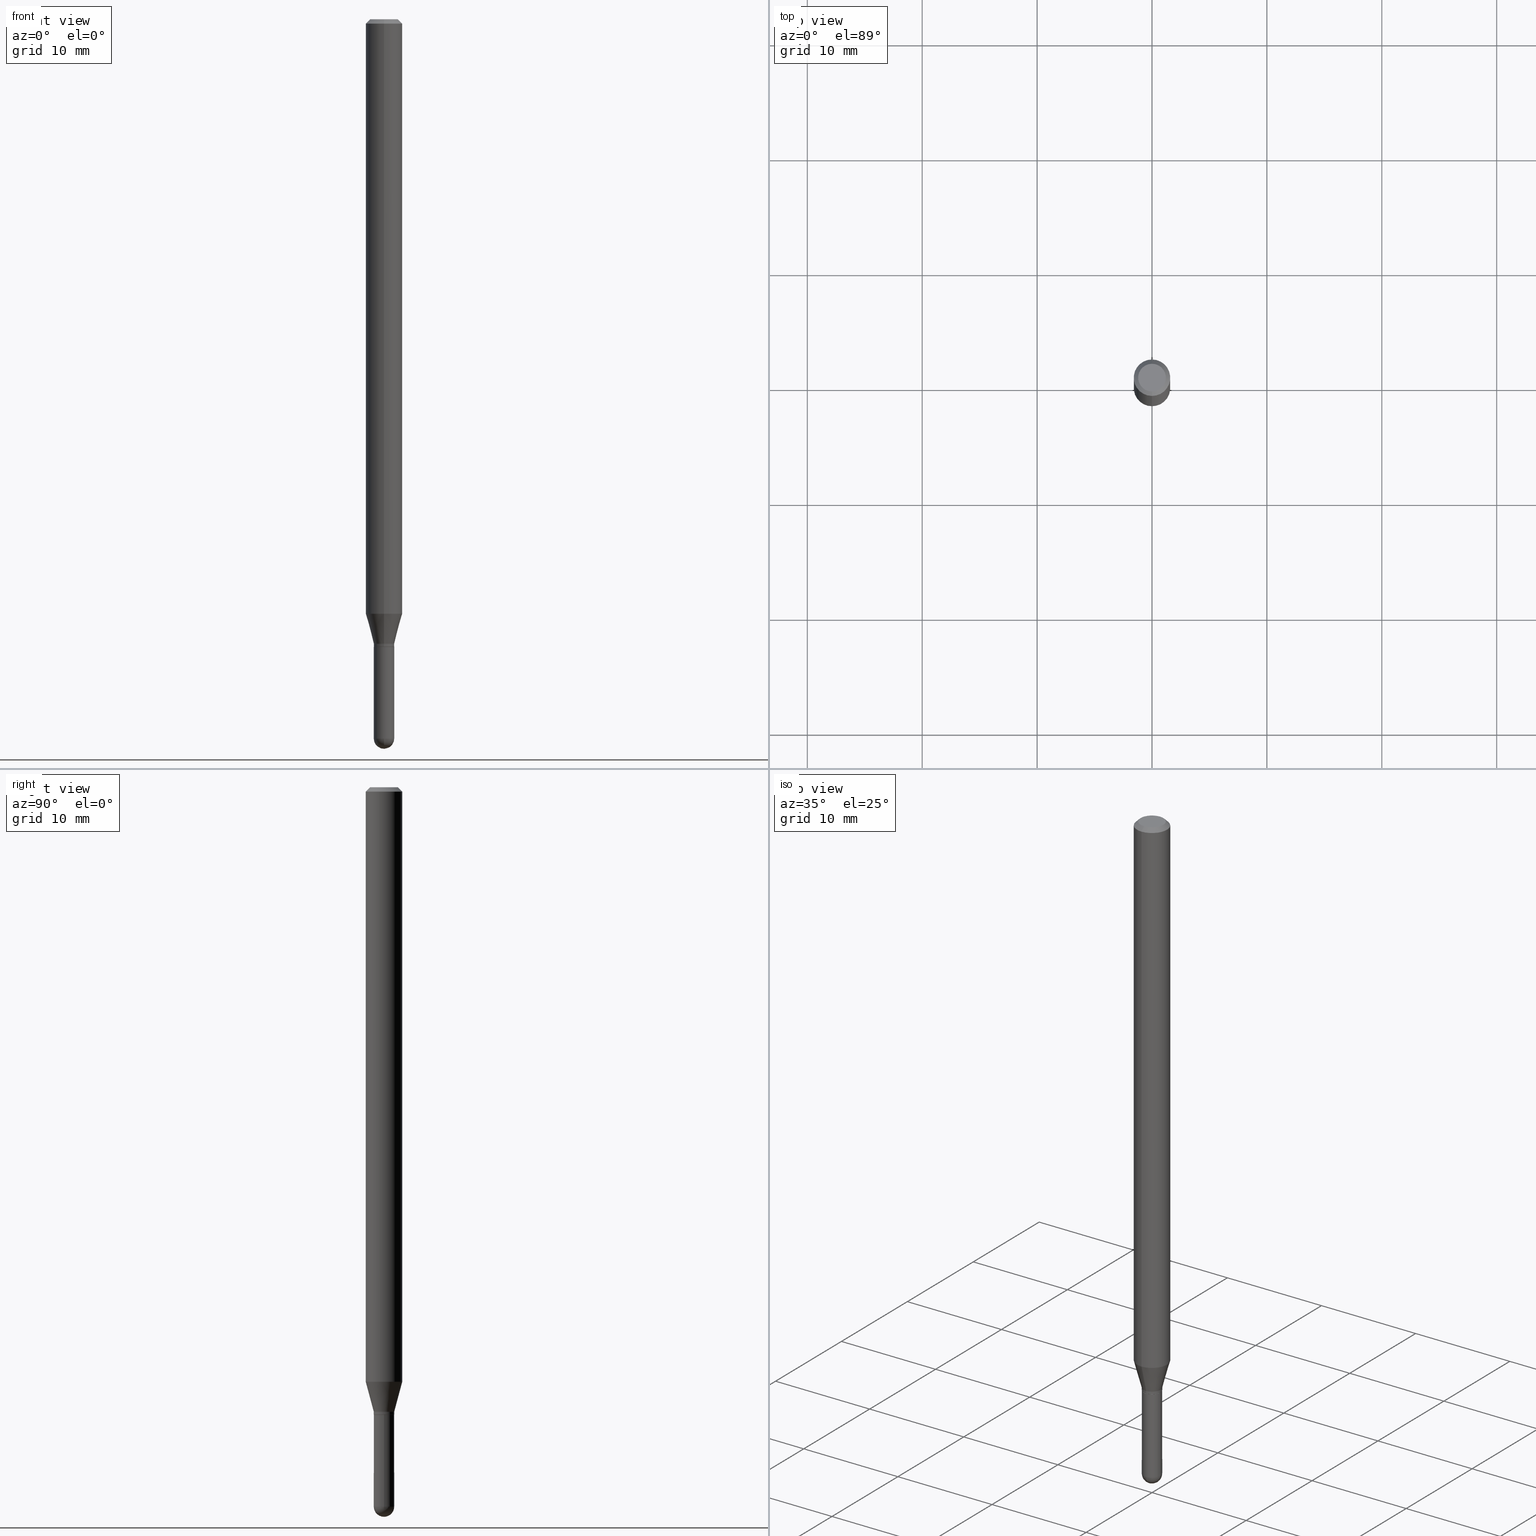
[diagram: canonical four-view strip — front | top / right | iso, engineering-drawing reading convention]
A machine part, canonical four-view strip (front | top / right | iso — engineering-drawing reading convention). The complete STEP part file that produces these views, byte-faithful:
ISO-10303-21;
HEADER;
FILE_DESCRIPTION (( 'STEP AP203' ),
    '1' );
FILE_NAME ('02735.STEP',
    '2024-03-07T21:05:31',
    ( '' ),
    ( '' ),
    'SwSTEP 2.0',
    'SolidWorks 2023',
    '' );
FILE_SCHEMA (( 'CONFIG_CONTROL_DESIGN' ));
ENDSEC;

DATA;
#1 = AXIS2_PLACEMENT_3D ( 'NONE', #473, #201, #432 ) ;
#2 = APPROVAL_PERSON_ORGANIZATION ( #58, #471, #490 ) ;
#3 = DATE_AND_TIME ( #493, #103 ) ;
#4 = ORIENTED_EDGE ( 'NONE', *, *, #326, .T. ) ;
#5 = CARTESIAN_POINT ( 'NONE',  ( 6.028080607246362204E-29, -8.606501500248354960E-15, -2.464999999999999858 ) ) ;
#6 = DIRECTION ( 'NONE',  ( 6.982962677686265922E-15, 1.000000000000000000, 0.000000000000000000 ) ) ;
#7 = ORIENTED_EDGE ( 'NONE', *, *, #303, .T. ) ;
#8 = PERSON_AND_ORGANIZATION ( #215, #102 ) ;
#9 = EDGE_CURVE ( 'NONE', #126, #216, #416, .T. ) ;
#10 = SPHERICAL_SURFACE ( 'NONE', #324, 0.03499999999999974659 ) ;
#11 = APPLICATION_CONTEXT ( 'configuration controlled 3d designs of mechanical parts and assemblies' ) ;
#12 = CIRCLE ( 'NONE', #240, 0.03499999999999992006 ) ;
#13 = ORIENTED_EDGE ( 'NONE', *, *, #183, .F. ) ;
#14 = VERTEX_POINT ( 'NONE', #160 ) ;
#15 = ORIENTED_EDGE ( 'NONE', *, *, #413, .F. ) ;
#16 = ORIENTED_EDGE ( 'NONE', *, *, #301, .F. ) ;
#17 = ORIENTED_EDGE ( 'NONE', *, *, #63, .T. ) ;
#18 = APPROVAL_ROLE ( '' ) ;
#19 = ORIENTED_EDGE ( 'NONE', *, *, #301, .T. ) ;
#20 = DATE_AND_TIME ( #371, #226 ) ;
#21 = CIRCLE ( 'NONE', #248, 0.03500000000000000333 ) ;
#22 = CIRCLE ( 'NONE', #123, 0.04749999999999999362 ) ;
#23 = ORIENTED_EDGE ( 'NONE', *, *, #428, .T. ) ;
#24 = LINE ( 'NONE', #105, #116 ) ;
#25 = CARTESIAN_POINT ( 'NONE',  ( 0.000000000000000000, 0.000000000000000000, 0.000000000000000000 ) ) ;
#26 = DIRECTION ( 'NONE',  ( 1.839019923739598738E-15, 0.2588190451025247363, 0.9659258262890673130 ) ) ;
#27 = MECHANICAL_CONTEXT ( 'NONE', #11, 'mechanical' ) ;
#28 = EDGE_CURVE ( 'NONE', #411, #334, #362, .T. ) ;
#29 = AXIS2_PLACEMENT_3D ( 'NONE', #497, #221, #379 ) ;
#30 = LINE ( 'NONE', #185, #233 ) ;
#31 = CARTESIAN_POINT ( 'NONE',  ( -2.444036937190187827E-16, -0.03499999999999992700, 1.221997012618838920E-16 ) ) ;
#32 = ADVANCED_FACE ( 'NONE', ( #166 ), #453, .T. ) ;
#33 = CARTESIAN_POINT ( 'NONE',  ( 8.024942926708156161E-45, -1.145708994617020312E-30, -3.281498595946520508E-16 ) ) ;
#34 =( CONVERSION_BASED_UNIT ( 'INCH', #231 ) LENGTH_UNIT ( ) NAMED_UNIT ( #131 ) );
#35 = DIRECTION ( 'NONE',  ( -2.445511613694117581E-29, 3.491420036053832811E-15, 1.000000000000000000 ) ) ;
#36 = CIRCLE ( 'NONE', #250, 0.06250000000000000000 ) ;
#37 = DIRECTION ( 'NONE',  ( -4.937700262164674260E-15, -0.7071067811865632269, 0.7071067811865319186 ) ) ;
#38 = FACE_OUTER_BOUND ( 'NONE', #171, .T. ) ;
#39 = DIRECTION ( 'NONE',  ( -2.445511613694117581E-29, 3.491420036053832811E-15, 1.000000000000000000 ) ) ;
#40 = DIRECTION ( 'NONE',  ( -2.445511613694117581E-29, 3.491420036053832811E-15, 1.000000000000000000 ) ) ;
#41 = FACE_OUTER_BOUND ( 'NONE', #293, .T. ) ;
#42 = DIRECTION ( 'NONE',  ( -2.445468806185136597E-29, 3.491481338843145583E-15, 1.000000000000000000 ) ) ;
#43 = DIRECTION ( 'NONE',  ( -6.982962677686265133E-15, -1.000000000000000000, 0.000000000000000000 ) ) ;
#44 =( GEOMETRIC_REPRESENTATION_CONTEXT ( 3 ) GLOBAL_UNCERTAINTY_ASSIGNED_CONTEXT ( ( #83 ) ) GLOBAL_UNIT_ASSIGNED_CONTEXT ( ( #34, #433, #237 ) ) REPRESENTATION_CONTEXT ( 'NONE', 'WORKASPACE' ) );
#45 = ORIENTED_EDGE ( 'NONE', *, *, #245, .F. ) ;
#46 = LINE ( 'NONE', #403, #100 ) ;
#47 = APPLICATION_PROTOCOL_DEFINITION ( 'international standard', 'config_control_design', 1994, #401 ) ;
#48 = CARTESIAN_POINT ( 'NONE',  ( 5.257849969442353571E-29, -7.506553077515741233E-15, -2.150000000000000355 ) ) ;
#49 = ORIENTED_EDGE ( 'NONE', *, *, #245, .T. ) ;
#50 = CC_DESIGN_PERSON_AND_ORGANIZATION_ASSIGNMENT ( #375, #392, ( #180 ) ) ;
#51 = ORIENTED_EDGE ( 'NONE', *, *, #235, .T. ) ;
#52 = AXIS2_PLACEMENT_3D ( 'NONE', #274, #107, #314 ) ;
#53 = VERTEX_POINT ( 'NONE', #358 ) ;
#54 = CC_DESIGN_APPROVAL ( #471, ( #389 ) ) ;
#55 = ADVANCED_FACE ( 'NONE', ( #87 ), #10, .T. ) ;
#56 = EDGE_LOOP ( 'NONE', ( #128, #322, #57, #254 ) ) ;
#57 = ORIENTED_EDGE ( 'NONE', *, *, #450, .F. ) ;
#58 = PERSON_AND_ORGANIZATION ( #215, #102 ) ;
#59 = VERTEX_POINT ( 'NONE', #442 ) ;
#60 = EDGE_LOOP ( 'NONE', ( #51, #368, #406, #169 ) ) ;
#61 = AXIS2_PLACEMENT_3D ( 'NONE', #281, #357, #99 ) ;
#62 = LINE ( 'NONE', #387, #165 ) ;
#63 = EDGE_CURVE ( 'NONE', #488, #496, #46, .T. ) ;
#64 = DIRECTION ( 'NONE',  ( -2.445511613694117301E-29, 3.491420036053832811E-15, 1.000000000000000000 ) ) ;
#65 = LINE ( 'NONE', #342, #343 ) ;
#66 = CYLINDRICAL_SURFACE ( 'NONE', #84, 0.03499999999999992700 ) ;
#67 = CARTESIAN_POINT ( 'NONE',  ( -2.444036937189664220E-16, -0.03500000000000739325, -2.139999999999999680 ) ) ;
#68 = CC_DESIGN_PERSON_AND_ORGANIZATION_ASSIGNMENT ( #353, #449, ( #158 ) ) ;
#69 = CIRCLE ( 'NONE', #354, 0.04749999999999999362 ) ;
#70 = CARTESIAN_POINT ( 'NONE',  ( 6.028080607246362204E-29, -8.606501500248354960E-15, -2.464999999999999858 ) ) ;
#71 = PLANE ( 'NONE',  #308 ) ;
#72 = CARTESIAN_POINT ( 'NONE',  ( -4.364351673553916201E-16, -0.06250000000000000000, 2.182137522533645507E-16 ) ) ;
#73 = LINE ( 'NONE', #306, #385 ) ;
#74 = CARTESIAN_POINT ( 'NONE',  ( 6.025087525234234064E-29, -8.610787764045369491E-15, -2.464999999999999858 ) ) ;
#75 = CIRCLE ( 'NONE', #494, 0.06250000000000000000 ) ;
#76 = VECTOR ( 'NONE', #26, 39.37007874015748854 ) ;
#77 = FACE_OUTER_BOUND ( 'NONE', #167, .T. ) ;
#78 = EDGE_CURVE ( 'NONE', #410, #59, #75, .T. ) ;
#79 = CARTESIAN_POINT ( 'NONE',  ( -3.773273898774340269E-16, -0.04749999999999999362, -1.623074078820950021E-16 ) ) ;
#80 = FACE_OUTER_BOUND ( 'NONE', #97, .T. ) ;
#81 = CARTESIAN_POINT ( 'NONE',  ( -0.03500000000000000333, -7.807903231864523961E-15, -2.150000000000000355 ) ) ;
#82 = AXIS2_PLACEMENT_3D ( 'NONE', #337, #188, #463 ) ;
#83 = UNCERTAINTY_MEASURE_WITH_UNIT (LENGTH_MEASURE( 1.000000000000000082E-05 ), #34, 'distance_accuracy_value', 'NONE');
#84 = AXIS2_PLACEMENT_3D ( 'NONE', #25, #341, #506 ) ;
#85 = CARTESIAN_POINT ( 'NONE',  ( 3.668267420541256859E-31, -5.237130054080864217E-17, -0.01500000000000032904 ) ) ;
#86 = ADVANCED_FACE ( 'NONE', ( #121 ), #481, .T. ) ;
#87 = FACE_OUTER_BOUND ( 'NONE', #251, .T. ) ;
#88 = ORIENTED_EDGE ( 'NONE', *, *, #326, .F. ) ;
#89 = CC_DESIGN_PERSON_AND_ORGANIZATION_ASSIGNMENT ( #256, #318, ( #158 ) ) ;
#90 = CARTESIAN_POINT ( 'NONE',  ( 4.982408579503238904E-29, -7.113309560614486055E-15, -2.037368602791855388 ) ) ;
#91 = ORIENTED_EDGE ( 'NONE', *, *, #431, .T. ) ;
#92 = ORIENTED_EDGE ( 'NONE', *, *, #510, .F. ) ;
#93 = AXIS2_PLACEMENT_3D ( 'NONE', #90, #487, #210 ) ;
#94 = VECTOR ( 'NONE', #195, 39.37007874015748143 ) ;
#95 = ORIENTED_EDGE ( 'NONE', *, *, #507, .F. ) ;
#96 = DIRECTION ( 'NONE',  ( -6.982962677686265922E-15, -1.000000000000000000, 3.483106191921935554E-15 ) ) ;
#97 = EDGE_LOOP ( 'NONE', ( #492, #252, #244, #409 ) ) ;
#98 = ORIENTED_EDGE ( 'NONE', *, *, #376, .T. ) ;
#99 = DIRECTION ( 'NONE',  ( 6.982962677686265922E-15, 1.000000000000000000, -3.483106191921935554E-15 ) ) ;
#100 = VECTOR ( 'NONE', #212, 39.37007874015748143 ) ;
#101 = ADVANCED_FACE ( 'NONE', ( #206 ), #241, .T. ) ;
#102 = ORGANIZATION ( 'UNSPECIFIED', 'UNSPECIFIED', '' ) ;
#103 = LOCAL_TIME ( 16, 5, 31.00000000000000000, #199 ) ;
#104 = DIRECTION ( 'NONE',  ( 1.000000000000000000, -6.982962677686265922E-15, 4.883557194083112340E-29 ) ) ;
#105 = CARTESIAN_POINT ( 'NONE',  ( 4.440892098500625669E-16, 0.06250000000000000000, -2.182137522533645507E-16 ) ) ;
#106 = DIRECTION ( 'NONE',  ( 6.982962677686265133E-15, 1.000000000000000000, 0.000000000000000000 ) ) ;
#107 = DIRECTION ( 'NONE',  ( -2.445511613694117581E-29, 3.491420036053832811E-15, 1.000000000000000000 ) ) ;
#108 = MANIFOLD_SOLID_BREP ( 'Body-Move/Copy2[1]', #198 ) ;
#109 = DIRECTION ( 'NONE',  ( -6.982962677686265922E-15, -1.000000000000000000, 3.491420036053832811E-15 ) ) ;
#110 = DIRECTION ( 'NONE',  ( -2.445511613694117581E-29, 3.491420036053832811E-15, 1.000000000000000000 ) ) ;
#111 = DIRECTION ( 'NONE',  ( 1.000000000000000000, -6.982962677686248567E-15, 0.000000000000000000 ) ) ;
#112 = APPROVAL_ROLE ( '' ) ;
#113 = DATE_TIME_ROLE ( 'creation_date' ) ;
#114 = FACE_OUTER_BOUND ( 'NONE', #491, .T. ) ;
#115 = DIRECTION ( 'NONE',  ( 6.982962677686265922E-15, 1.000000000000000000, -3.491420036053832811E-15 ) ) ;
#116 = VECTOR ( 'NONE', #146, 39.37007874015748143 ) ;
#117 = SECURITY_CLASSIFICATION_LEVEL ( 'unclassified' ) ;
#118 = DIRECTION ( 'NONE',  ( -2.445511613694117581E-29, 3.491420036053832811E-15, 1.000000000000000000 ) ) ;
#119 = DIRECTION ( 'NONE',  ( -6.982962677686266711E-15, -1.000000000000000000, 0.000000000000000000 ) ) ;
#120 = PLANE ( 'NONE',  #332 ) ;
#121 = FACE_OUTER_BOUND ( 'NONE', #297, .T. ) ;
#122 = CLOSED_SHELL ( 'NONE', ( #271, #174, #485, #283, #508, #32, #101, #477, #161, #213, #86, #321 ) ) ;
#123 = AXIS2_PLACEMENT_3D ( 'NONE', #236, #186, #267 ) ;
#124 = ORIENTED_EDGE ( 'NONE', *, *, #388, .F. ) ;
#125 = CC_DESIGN_PERSON_AND_ORGANIZATION_ASSIGNMENT ( #8, #319, ( #175 ) ) ;
#126 = VERTEX_POINT ( 'NONE', #349 ) ;
#127 = VERTEX_POINT ( 'NONE', #192 ) ;
#128 = ORIENTED_EDGE ( 'NONE', *, *, #421, .T. ) ;
#129 = DIRECTION ( 'NONE',  ( -2.445511613694117581E-29, 3.491420036053832811E-15, 1.000000000000000000 ) ) ;
#130 = ORIENTED_EDGE ( 'NONE', *, *, #28, .F. ) ;
#131 = DIMENSIONAL_EXPONENTS ( 1.000000000000000000, 0.000000000000000000, 0.000000000000000000, 0.000000000000000000, 0.000000000000000000, 0.000000000000000000, 0.000000000000000000 ) ;
#132 = DATE_AND_TIME ( #451, #373 ) ;
#133 = DIRECTION ( 'NONE',  ( -1.000000000000000000, 6.982962677686265922E-15, -4.883557194083112901E-29 ) ) ;
#134 = VECTOR ( 'NONE', #467, 39.37007874015748143 ) ;
#135 = ORIENTED_EDGE ( 'NONE', *, *, #388, .T. ) ;
#136 = APPROVAL_DATE_TIME ( #3, #155 ) ;
#137 = DIRECTION ( 'NONE',  ( 1.000000000000000000, -6.982962677686248567E-15, 0.000000000000000000 ) ) ;
#138 = APPROVAL_STATUS ( 'not_yet_approved' ) ;
#139 = ORIENTED_EDGE ( 'NONE', *, *, #290, .T. ) ;
#140 = CARTESIAN_POINT ( 'NONE',  ( 5.233394853305410139E-29, -7.471638877155202175E-15, -2.139999999999999680 ) ) ;
#141 = DIRECTION ( 'NONE',  ( -2.445468806185136597E-29, 3.491481338843145583E-15, 1.000000000000000000 ) ) ;
#142 = APPROVAL ( #164, 'UNSPECIFIED' ) ;
#143 = CIRCLE ( 'NONE', #436, 0.03499999999999992700 ) ;
#144 = DIRECTION ( 'NONE',  ( 1.000000000000000000, -6.982962677686248567E-15, 0.000000000000000000 ) ) ;
#145 = DIRECTION ( 'NONE',  ( -6.982962677686265133E-15, -1.000000000000000000, 0.000000000000000000 ) ) ;
#146 = DIRECTION ( 'NONE',  ( -2.445511613694117581E-29, 3.491420036053832811E-15, 1.000000000000000000 ) ) ;
#147 = ADVANCED_BREP_SHAPE_REPRESENTATION ( '02735', ( #108, #277, #333 ), #44 ) ;
#148 = CARTESIAN_POINT ( 'NONE',  ( 0.000000000000000000, 0.000000000000000000, 0.000000000000000000 ) ) ;
#149 = DIRECTION ( 'NONE',  ( -2.445511613694117581E-29, 3.491420036053832811E-15, 1.000000000000000000 ) ) ;
#150 = CARTESIAN_POINT ( 'NONE',  ( 5.257849969442353571E-29, -7.506553077515741233E-15, -2.150000000000000355 ) ) ;
#151 = AXIS2_PLACEMENT_3D ( 'NONE', #264, #298, #381 ) ;
#152 = DIRECTION ( 'NONE',  ( -2.445468806185136877E-29, 3.491481338843145188E-15, 1.000000000000000000 ) ) ;
#153 = CARTESIAN_POINT ( 'NONE',  ( -2.409122123801235628E-16, -0.03450000000000751077, -2.150000000000000355 ) ) ;
#154 = FACE_OUTER_BOUND ( 'NONE', #56, .T. ) ;
#155 = APPROVAL ( #196, 'UNSPECIFIED' ) ;
#156 = CIRCLE ( 'NONE', #82, 0.06250000000000000000 ) ;
#157 = CIRCLE ( 'NONE', #291, 0.03500000000000000333 ) ;
#158 = PRODUCT_DEFINITION_FORMATION_WITH_SPECIFIED_SOURCE ( 'ANY', '', #175, .NOT_KNOWN. ) ;
#159 = DIRECTION ( 'NONE',  ( 1.000000000000000000, -6.982962677686265922E-15, 4.876176775795936353E-29 ) ) ;
#160 = CARTESIAN_POINT ( 'NONE',  ( 0.03500000000000000333, -8.300996883099578424E-15, -2.464999999999999858 ) ) ;
#161 = ADVANCED_FACE ( 'NONE', ( #38 ), #120, .F. ) ;
#162 = DIRECTION ( 'NONE',  ( -6.982962677686265133E-15, -1.000000000000000000, 0.000000000000000000 ) ) ;
#163 = VERTEX_POINT ( 'NONE', #393 ) ;
#164 = APPROVAL_STATUS ( 'not_yet_approved' ) ;
#165 = VECTOR ( 'NONE', #462, 39.37007874015748143 ) ;
#166 = FACE_OUTER_BOUND ( 'NONE', #325, .T. ) ;
#167 = EDGE_LOOP ( 'NONE', ( #49, #4 ) ) ;
#168 = VERTEX_POINT ( 'NONE', #79 ) ;
#169 = ORIENTED_EDGE ( 'NONE', *, *, #351, .F. ) ;
#170 = DIRECTION ( 'NONE',  ( -6.982962677686265133E-15, -1.000000000000000000, 0.000000000000000000 ) ) ;
#171 = EDGE_LOOP ( 'NONE', ( #448, #7 ) ) ;
#172 = CIRCLE ( 'NONE', #395, 0.03500000000000000333 ) ;
#173 = ORIENTED_EDGE ( 'NONE', *, *, #249, .F. ) ;
#174 = ADVANCED_FACE ( 'NONE', ( #478 ), #372, .T. ) ;
#175 = PRODUCT ( '02735', '02735', '', ( #27 ) ) ;
#176 = FACE_OUTER_BOUND ( 'NONE', #441, .T. ) ;
#177 = ORIENTED_EDGE ( 'NONE', *, *, #317, .T. ) ;
#178 = CYLINDRICAL_SURFACE ( 'NONE', #454, 0.03500000000000000333 ) ;
#179 = CARTESIAN_POINT ( 'NONE',  ( 4.440892098501128074E-16, 0.06249999999999995837, -0.01500000000000054588 ) ) ;
#180 = PRODUCT_DEFINITION ( 'UNKNOWN', '', #158, #479 ) ;
#181 = CYLINDRICAL_SURFACE ( 'NONE', #273, 0.03500000000000000333 ) ;
#182 = DIRECTION ( 'NONE',  ( 1.000000000000000000, -6.982962677686276966E-15, 0.000000000000000000 ) ) ;
#183 = EDGE_CURVE ( 'NONE', #488, #207, #172, .T. ) ;
#184 = CIRCLE ( 'NONE', #474, 0.03499999999999992700 ) ;
#185 = CARTESIAN_POINT ( 'NONE',  ( 0.03500000000000000333, -2.444036937190193250E-16, 1.706661871528577808E-30 ) ) ;
#186 = DIRECTION ( 'NONE',  ( -2.445511613694117581E-29, 3.491420036053832811E-15, 1.000000000000000000 ) ) ;
#187 = CARTESIAN_POINT ( 'NONE',  ( -2.444036937189670630E-16, -0.03500000000000755285, -2.149500000000000188 ) ) ;
#188 = DIRECTION ( 'NONE',  ( -2.445511613694117581E-29, 3.491420036053832811E-15, 1.000000000000000000 ) ) ;
#189 = CARTESIAN_POINT ( 'NONE',  ( 2.469136006766870987E-16, 0.03449999999999249500, -2.150000000000000355 ) ) ;
#190 = CC_DESIGN_APPROVAL ( #142, ( #180 ) ) ;
#191 = EDGE_CURVE ( 'NONE', #411, #447, #459, .T. ) ;
#192 = CARTESIAN_POINT ( 'NONE',  ( 3.463895836830996847E-16, 0.03499999999999245381, -2.139999999999999680 ) ) ;
#193 = CC_DESIGN_PERSON_AND_ORGANIZATION_ASSIGNMENT ( #412, #217, ( #389 ) ) ;
#194 =( LENGTH_UNIT ( ) NAMED_UNIT ( * ) SI_UNIT ( $, .METRE. ) );
#195 = DIRECTION ( 'NONE',  ( -2.445511613694117581E-29, 3.491420036053832811E-15, 1.000000000000000000 ) ) ;
#196 = APPROVAL_STATUS ( 'not_yet_approved' ) ;
#197 = APPROVAL_DATE_TIME ( #276, #142 ) ;
#198 = CLOSED_SHELL ( 'NONE', ( #468, #456, #344, #55, #262 ) ) ;
#199 = COORDINATED_UNIVERSAL_TIME_OFFSET ( 5, 0, .BEHIND. ) ;
#200 = AXIS2_PLACEMENT_3D ( 'NONE', #270, #40, #119 ) ;
#201 = DIRECTION ( 'NONE',  ( 2.445511613694117581E-29, -3.491420036053832811E-15, -1.000000000000000000 ) ) ;
#202 = ORIENTED_EDGE ( 'NONE', *, *, #317, .F. ) ;
#203 = DIRECTION ( 'NONE',  ( 2.445511613694117301E-29, -3.491420036053832811E-15, -1.000000000000000000 ) ) ;
#204 = ORIENTED_EDGE ( 'NONE', *, *, #232, .F. ) ;
#205 = ORIENTED_EDGE ( 'NONE', *, *, #364, .T. ) ;
#206 = FACE_OUTER_BOUND ( 'NONE', #255, .T. ) ;
#207 = VERTEX_POINT ( 'NONE', #420 ) ;
#208 = CIRCLE ( 'NONE', #500, 0.03499999999999974659 ) ;
#209 = AXIS2_PLACEMENT_3D ( 'NONE', #150, #39, #512 ) ;
#210 = DIRECTION ( 'NONE',  ( -6.982962677686265922E-15, -1.000000000000000000, 4.370956789862821150E-15 ) ) ;
#211 = ORIENTED_EDGE ( 'NONE', *, *, #503, .F. ) ;
#212 = DIRECTION ( 'NONE',  ( -2.445468806185136877E-29, 3.491481338843145188E-15, 1.000000000000000000 ) ) ;
#213 = ADVANCED_FACE ( 'NONE', ( #41 ), #316, .F. ) ;
#214 = ORIENTED_EDGE ( 'NONE', *, *, #503, .T. ) ;
#215 = PERSON ( 'UNSPECIFIED', 'UNSPECIFIED', 'UNSPECIFIED', ('UNSPECIFIED'), ('UNSPECIFIED'), ('UNSPECIFIED') ) ;
#216 = VERTEX_POINT ( 'NONE', #424 ) ;
#217 = PERSON_AND_ORGANIZATION_ROLE ( 'classification_officer' ) ;
#218 = CARTESIAN_POINT ( 'NONE',  ( 6.028080607246362204E-29, -8.606501500248354960E-15, -2.464999999999999858 ) ) ;
#219 = SHAPE_DEFINITION_REPRESENTATION ( #294, #147 ) ;
#220 = ORIENTED_EDGE ( 'NONE', *, *, #275, .F. ) ;
#221 = DIRECTION ( 'NONE',  ( -1.000000000000000000, 6.982962677686265922E-15, -4.883557194083112901E-29 ) ) ;
#222 = DIRECTION ( 'NONE',  ( -6.982962677686265922E-15, -1.000000000000000000, 3.491420036053832811E-15 ) ) ;
#223 = DIRECTION ( 'NONE',  ( 2.438088387897960049E-29, -3.491481338843145188E-15, -1.000000000000000000 ) ) ;
#224 = DIRECTION ( 'NONE',  ( -6.982962677686266711E-15, -1.000000000000000000, 0.000000000000000000 ) ) ;
#225 = CIRCLE ( 'NONE', #363, 0.03499999999999992006 ) ;
#226 = LOCAL_TIME ( 16, 5, 31.00000000000000000, #278 ) ;
#227 = DIRECTION ( 'NONE',  ( -2.445468806185136597E-29, 3.491481338843145583E-15, 1.000000000000000000 ) ) ;
#228 = CARTESIAN_POINT ( 'NONE',  ( 2.444036937190718829E-16, 0.03499999999999249545, -2.150000000000000355 ) ) ;
#229 = DIRECTION ( 'NONE',  ( 1.000000000000000000, -6.982962677686265922E-15, 4.876176775795936353E-29 ) ) ;
#230 = CARTESIAN_POINT ( 'NONE',  ( 3.840629472727447874E-16, 0.04749999999999999362, -4.939923113072091241E-16 ) ) ;
#231 = LENGTH_MEASURE_WITH_UNIT ( LENGTH_MEASURE( 0.02539999999999999897 ), #194 );
#232 = EDGE_CURVE ( 'NONE', #53, #163, #208, .T. ) ;
#233 = VECTOR ( 'NONE', #152, 39.37007874015748143 ) ;
#234 = DIRECTION ( 'NONE',  ( -2.445468806185136597E-29, 3.491481338843145583E-15, 1.000000000000000000 ) ) ;
#235 = EDGE_CURVE ( 'NONE', #447, #359, #184, .T. ) ;
#236 = CARTESIAN_POINT ( 'NONE',  ( 8.024942926708156161E-45, -1.145708994617020312E-30, -3.281498595946520508E-16 ) ) ;
#237 =( NAMED_UNIT ( * ) SI_UNIT ( $, .STERADIAN. ) SOLID_ANGLE_UNIT ( ) );
#238 = AXIS2_PLACEMENT_3D ( 'NONE', #356, #118, #43 ) ;
#239 = VECTOR ( 'NONE', #37, 39.37007874015748143 ) ;
#240 = AXIS2_PLACEMENT_3D ( 'NONE', #391, #312, #419 ) ;
#241 = CYLINDRICAL_SURFACE ( 'NONE', #269, 0.06250000000000000000 ) ;
#242 = CARTESIAN_POINT ( 'NONE',  ( -0.03500000000000000333, -7.807903231864523961E-15, -2.464999999999999858 ) ) ;
#243 = CARTESIAN_POINT ( 'NONE',  ( 6.025087525234234064E-29, -8.610787764045369491E-15, -2.464999999999999858 ) ) ;
#244 = ORIENTED_EDGE ( 'NONE', *, *, #253, .T. ) ;
#245 = EDGE_CURVE ( 'NONE', #366, #496, #21, .T. ) ;
#246 = DIRECTION ( 'NONE',  ( -2.445511613694117581E-29, 3.491420036053832811E-15, 1.000000000000000000 ) ) ;
#247 = EDGE_LOOP ( 'NONE', ( #328, #135, #370, #92 ) ) ;
#248 = AXIS2_PLACEMENT_3D ( 'NONE', #348, #266, #263 ) ;
#249 = EDGE_CURVE ( 'NONE', #168, #59, #73, .T. ) ;
#250 = AXIS2_PLACEMENT_3D ( 'NONE', #268, #110, #505 ) ;
#251 = EDGE_LOOP ( 'NONE', ( #202, #286, #211, #452 ) ) ;
#252 = ORIENTED_EDGE ( 'NONE', *, *, #249, .T. ) ;
#253 = EDGE_CURVE ( 'NONE', #59, #410, #156, .T. ) ;
#254 = ORIENTED_EDGE ( 'NONE', *, *, #339, .F. ) ;
#255 = EDGE_LOOP ( 'NONE', ( #124, #365, #336, #285 ) ) ;
#256 = PERSON_AND_ORGANIZATION ( #215, #102 ) ;
#257 = DIRECTION ( 'NONE',  ( 1.000000000000000000, 0.000000000000000000, 0.000000000000000000 ) ) ;
#258 = ORIENTED_EDGE ( 'NONE', *, *, #191, .F. ) ;
#259 = AXIS2_PLACEMENT_3D ( 'NONE', #440, #129, #288 ) ;
#260 = AXIS2_PLACEMENT_3D ( 'NONE', #70, #227, #111 ) ;
#261 = DIRECTION ( 'NONE',  ( -4.851104656540964275E-15, -0.7071067811865500152, -0.7071067811865450192 ) ) ;
#262 = ADVANCED_FACE ( 'NONE', ( #460 ), #178, .T. ) ;
#263 = DIRECTION ( 'NONE',  ( 1.000000000000000000, -6.982962677686276966E-15, 0.000000000000000000 ) ) ;
#264 = CARTESIAN_POINT ( 'NONE',  ( 6.028080607246362204E-29, -8.606501500248354960E-15, -2.464999999999999858 ) ) ;
#265 = COORDINATED_UNIVERSAL_TIME_OFFSET ( 5, 0, .BEHIND. ) ;
#266 = DIRECTION ( 'NONE',  ( -2.445468806185136597E-29, 3.491481338843145583E-15, 1.000000000000000000 ) ) ;
#267 = DIRECTION ( 'NONE',  ( -6.982962677686266711E-15, -1.000000000000000000, 3.491420036053833205E-15 ) ) ;
#268 = CARTESIAN_POINT ( 'NONE',  ( 4.982408579503238904E-29, -7.113309560614486055E-15, -2.037368602791855388 ) ) ;
#269 = AXIS2_PLACEMENT_3D ( 'NONE', #405, #480, #360 ) ;
#270 = CARTESIAN_POINT ( 'NONE',  ( 5.233394853305410139E-29, -7.471638877155202175E-15, -2.139999999999999680 ) ) ;
#271 = ADVANCED_FACE ( 'NONE', ( #347 ), #66, .T. ) ;
#272 = COORDINATED_UNIVERSAL_TIME_OFFSET ( 5, 0, .BEHIND. ) ;
#273 = AXIS2_PLACEMENT_3D ( 'NONE', #499, #141, #159 ) ;
#274 = CARTESIAN_POINT ( 'NONE',  ( 0.000000000000000000, 0.000000000000000000, 0.000000000000000000 ) ) ;
#275 = EDGE_CURVE ( 'NONE', #14, #366, #30, .T. ) ;
#276 = DATE_AND_TIME ( #397, #445 ) ;
#277 = MANIFOLD_SOLID_BREP ( 'Body-Move/Copy2[2]', #122 ) ;
#278 = COORDINATED_UNIVERSAL_TIME_OFFSET ( 5, 0, .BEHIND. ) ;
#279 = DIRECTION ( 'NONE',  ( -2.445511613694117581E-29, 3.491420036053832811E-15, 1.000000000000000000 ) ) ;
#280 = CONICAL_SURFACE ( 'NONE', #1, 0.06250000000000000000, 0.7853981633974483900 ) ;
#281 = CARTESIAN_POINT ( 'NONE',  ( 3.668267420541256859E-31, -5.237130054080864217E-17, -0.01500000000000032904 ) ) ;
#282 = ORIENTED_EDGE ( 'NONE', *, *, #9, .F. ) ;
#283 = ADVANCED_FACE ( 'NONE', ( #345 ), #504, .T. ) ;
#284 = ORIENTED_EDGE ( 'NONE', *, *, #275, .T. ) ;
#285 = ORIENTED_EDGE ( 'NONE', *, *, #78, .F. ) ;
#286 = ORIENTED_EDGE ( 'NONE', *, *, #232, .T. ) ;
#287 = PRODUCT_RELATED_PRODUCT_CATEGORY ( 'detail', '', ( #175 ) ) ;
#288 = DIRECTION ( 'NONE',  ( -6.982962677686266711E-15, -1.000000000000000000, 0.000000000000000000 ) ) ;
#289 = ORIENTED_EDGE ( 'NONE', *, *, #364, .F. ) ;
#290 = EDGE_CURVE ( 'NONE', #207, #14, #465, .T. ) ;
#291 = AXIS2_PLACEMENT_3D ( 'NONE', #218, #234, #137 ) ;
#292 = EDGE_LOOP ( 'NONE', ( #173, #95, #98, #439 ) ) ;
#293 = EDGE_LOOP ( 'NONE', ( #130, #482 ) ) ;
#294 = PRODUCT_DEFINITION_SHAPE ( 'NONE', 'NONE',  #180 ) ;
#295 = DIRECTION ( 'NONE',  ( 0.000000000000000000, 0.000000000000000000, 1.000000000000000000 ) ) ;
#296 = COORDINATED_UNIVERSAL_TIME_OFFSET ( 5, 0, .BEHIND. ) ;
#297 = EDGE_LOOP ( 'NONE', ( #374, #355, #323, #438 ) ) ;
#298 = DIRECTION ( 'NONE',  ( -2.445468806185136597E-29, 3.491481338843145583E-15, 1.000000000000000000 ) ) ;
#299 = AXIS2_PLACEMENT_3D ( 'NONE', #415, #64, #222 ) ;
#300 = AXIS2_PLACEMENT_3D ( 'NONE', #305, #42, #182 ) ;
#301 = EDGE_CURVE ( 'NONE', #127, #414, #12, .T. ) ;
#302 = DIRECTION ( 'NONE',  ( -1.000000000000000000, 7.105427357601001070E-15, -4.926315508542082329E-29 ) ) ;
#303 = EDGE_CURVE ( 'NONE', #168, #486, #22, .T. ) ;
#304 = DIRECTION ( 'NONE',  ( -2.445511613694117581E-29, 3.491420036053832811E-15, 1.000000000000000000 ) ) ;
#305 = CARTESIAN_POINT ( 'NONE',  ( 5.257757933298044131E-29, -7.506684878512763535E-15, -2.150000000000000355 ) ) ;
#306 = CARTESIAN_POINT ( 'NONE',  ( -4.287811248607203282E-16, -0.06250000000000005551, -0.01500000000000011047 ) ) ;
#307 = AXIS2_PLACEMENT_3D ( 'NONE', #320, #402, #170 ) ;
#308 = AXIS2_PLACEMENT_3D ( 'NONE', #228, #223, #399 ) ;
#309 = LINE ( 'NONE', #72, #134 ) ;
#310 = AXIS2_PLACEMENT_3D ( 'NONE', #377, #302, #384 ) ;
#311 = APPROVAL_PERSON_ORGANIZATION ( #369, #155, #18 ) ;
#312 = DIRECTION ( 'NONE',  ( -2.445511613694117581E-29, 3.491420036053832811E-15, 1.000000000000000000 ) ) ;
#313 = DIRECTION ( 'NONE',  ( -2.445468806185136597E-29, 3.491481338843145583E-15, 1.000000000000000000 ) ) ;
#314 = DIRECTION ( 'NONE',  ( -6.982962677686265133E-15, -1.000000000000000000, 3.491420036053832811E-15 ) ) ;
#315 = DATE_TIME_ROLE ( 'classification_date' ) ;
#316 = PLANE ( 'NONE',  #299 ) ;
#317 = EDGE_CURVE ( 'NONE', #53, #207, #501, .T. ) ;
#318 = PERSON_AND_ORGANIZATION_ROLE ( 'design_supplier' ) ;
#319 = PERSON_AND_ORGANIZATION_ROLE ( 'design_owner' ) ;
#320 = CARTESIAN_POINT ( 'NONE',  ( 5.257849969442353571E-29, -7.506553077515741233E-15, -2.150000000000000355 ) ) ;
#321 = ADVANCED_FACE ( 'NONE', ( #114 ), #425, .T. ) ;
#322 = ORIENTED_EDGE ( 'NONE', *, *, #413, .T. ) ;
#323 = ORIENTED_EDGE ( 'NONE', *, *, #191, .T. ) ;
#324 = AXIS2_PLACEMENT_3D ( 'NONE', #243, #133, #6 ) ;
#325 = EDGE_LOOP ( 'NONE', ( #15, #19, #404, #282 ) ) ;
#326 = EDGE_CURVE ( 'NONE', #496, #366, #396, .T. ) ;
#327 = EDGE_LOOP ( 'NONE', ( #204, #177, #13, #289 ) ) ;
#328 = ORIENTED_EDGE ( 'NONE', *, *, #450, .T. ) ;
#329 = ORIENTED_EDGE ( 'NONE', *, *, #63, .F. ) ;
#330 = EDGE_LOOP ( 'NONE', ( #361, #91, #331, #258 ) ) ;
#331 = ORIENTED_EDGE ( 'NONE', *, *, #235, .F. ) ;
#332 = AXIS2_PLACEMENT_3D ( 'NONE', #511, #203, #115 ) ;
#333 = AXIS2_PLACEMENT_3D ( 'NONE', #378, #295, #257 ) ;
#334 = VERTEX_POINT ( 'NONE', #189 ) ;
#335 = SPHERICAL_SURFACE ( 'NONE', #29, 0.03499999999999974659 ) ;
#336 = ORIENTED_EDGE ( 'NONE', *, *, #510, .T. ) ;
#337 = CARTESIAN_POINT ( 'NONE',  ( 3.668267420541256859E-31, -5.237130054080864217E-17, -0.01500000000000032904 ) ) ;
#338 = LINE ( 'NONE', #458, #76 ) ;
#339 = EDGE_CURVE ( 'NONE', #414, #216, #65, .T. ) ;
#340 = FACE_OUTER_BOUND ( 'NONE', #327, .T. ) ;
#341 = DIRECTION ( 'NONE',  ( -2.445511613694117581E-29, 3.491420036053832811E-15, 1.000000000000000000 ) ) ;
#342 = CARTESIAN_POINT ( 'NONE',  ( -2.444036937189664220E-16, -0.03500000000000739325, -2.139999999999999680 ) ) ;
#343 = VECTOR ( 'NONE', #430, 39.37007874015748854 ) ;
#344 = ADVANCED_FACE ( 'NONE', ( #77 ), #71, .F. ) ;
#345 = FACE_OUTER_BOUND ( 'NONE', #247, .T. ) ;
#346 = CARTESIAN_POINT ( 'NONE',  ( 5.256627213635507408E-29, -7.504807367497714517E-15, -2.149500000000000188 ) ) ;
#347 = FACE_OUTER_BOUND ( 'NONE', #60, .T. ) ;
#348 = CARTESIAN_POINT ( 'NONE',  ( 5.257757933298044131E-29, -7.506684878512763535E-15, -2.150000000000000355 ) ) ;
#349 = CARTESIAN_POINT ( 'NONE',  ( 4.440892098501122158E-16, 0.06249999999999285988, -2.037368602791855832 ) ) ;
#350 = LINE ( 'NONE', #509, #407 ) ;
#351 = EDGE_CURVE ( 'NONE', #447, #414, #390, .T. ) ;
#352 = CARTESIAN_POINT ( 'NONE',  ( 0.03500000000000000333, -7.751088572231783501E-15, -2.150000000000000355 ) ) ;
#353 = PERSON_AND_ORGANIZATION ( #215, #102 ) ;
#354 = AXIS2_PLACEMENT_3D ( 'NONE', #33, #35, #469 ) ;
#355 = ORIENTED_EDGE ( 'NONE', *, *, #489, .T. ) ;
#356 = CARTESIAN_POINT ( 'NONE',  ( 5.257849969442353571E-29, -7.506553077515741233E-15, -2.150000000000000355 ) ) ;
#357 = DIRECTION ( 'NONE',  ( 2.445511613694117581E-29, -3.491420036053832811E-15, -1.000000000000000000 ) ) ;
#358 = CARTESIAN_POINT ( 'NONE',  ( 6.112175474456776861E-29, -8.730846479006371419E-15, -2.499999999999999556 ) ) ;
#359 = VERTEX_POINT ( 'NONE', #461 ) ;
#360 = DIRECTION ( 'NONE',  ( -6.982962677686265922E-15, -1.000000000000000000, 3.491420036053832811E-15 ) ) ;
#361 = ORIENTED_EDGE ( 'NONE', *, *, #28, .T. ) ;
#362 = CIRCLE ( 'NONE', #307, 0.03450000000000000289 ) ;
#363 = AXIS2_PLACEMENT_3D ( 'NONE', #140, #455, #224 ) ;
#364 = EDGE_CURVE ( 'NONE', #163, #488, #417, .T. ) ;
#365 = ORIENTED_EDGE ( 'NONE', *, *, #9, .T. ) ;
#366 = VERTEX_POINT ( 'NONE', #352 ) ;
#367 = ORIENTED_EDGE ( 'NONE', *, *, #351, .T. ) ;
#368 = ORIENTED_EDGE ( 'NONE', *, *, #408, .T. ) ;
#369 = PERSON_AND_ORGANIZATION ( #215, #102 ) ;
#370 = ORIENTED_EDGE ( 'NONE', *, *, #253, .F. ) ;
#371 = CALENDAR_DATE ( 2024, 7, 3 ) ;
#372 = CONICAL_SURFACE ( 'NONE', #238, 0.03450000000000000289, 0.7853981633974739252 ) ;
#373 = LOCAL_TIME ( 16, 5, 31.00000000000000000, #296 ) ;
#374 = ORIENTED_EDGE ( 'NONE', *, *, #431, .F. ) ;
#375 = PERSON_AND_ORGANIZATION ( #215, #102 ) ;
#376 = EDGE_CURVE ( 'NONE', #486, #410, #423, .T. ) ;
#377 = CARTESIAN_POINT ( 'NONE',  ( 6.025087525234234064E-29, -8.610787764045369491E-15, -2.464999999999999858 ) ) ;
#378 = CARTESIAN_POINT ( 'NONE',  ( 0.000000000000000000, 0.000000000000000000, 0.000000000000000000 ) ) ;
#379 = DIRECTION ( 'NONE',  ( 6.982962677686265922E-15, 1.000000000000000000, 0.000000000000000000 ) ) ;
#380 = CARTESIAN_POINT ( 'NONE',  ( 0.000000000000000000, 0.000000000000000000, 0.000000000000000000 ) ) ;
#381 = DIRECTION ( 'NONE',  ( 1.000000000000000000, -6.982962677686248567E-15, 0.000000000000000000 ) ) ;
#382 = CC_DESIGN_DATE_AND_TIME_ASSIGNMENT ( #394, #113, ( #180 ) ) ;
#383 = DIRECTION ( 'NONE',  ( -2.445511613694117581E-29, 3.491420036053832811E-15, 1.000000000000000000 ) ) ;
#384 = DIRECTION ( 'NONE',  ( -7.105427357601000281E-15, -1.000000000000000000, 0.000000000000000000 ) ) ;
#385 = VECTOR ( 'NONE', #261, 39.37007874015748143 ) ;
#386 = CIRCLE ( 'NONE', #209, 0.03450000000000000289 ) ;
#387 = CARTESIAN_POINT ( 'NONE',  ( 2.451372438372871425E-16, 0.03449999999999249500, -2.150000000000000355 ) ) ;
#388 = EDGE_CURVE ( 'NONE', #126, #410, #24, .T. ) ;
#389 = SECURITY_CLASSIFICATION ( '', '', #117 ) ;
#390 = LINE ( 'NONE', #31, #94 ) ;
#391 = CARTESIAN_POINT ( 'NONE',  ( 5.233394853305410139E-29, -7.471638877155202175E-15, -2.139999999999999680 ) ) ;
#392 = PERSON_AND_ORGANIZATION_ROLE ( 'creator' ) ;
#393 = CARTESIAN_POINT ( 'NONE',  ( 2.444036937190786868E-16, 0.03499999999999126726, -2.464999999999999858 ) ) ;
#394 = DATE_AND_TIME ( #495, #437 ) ;
#395 = AXIS2_PLACEMENT_3D ( 'NONE', #5, #313, #144 ) ;
#396 = CIRCLE ( 'NONE', #300, 0.03500000000000000333 ) ;
#397 = CALENDAR_DATE ( 2024, 7, 3 ) ;
#398 = CARTESIAN_POINT ( 'NONE',  ( -2.409122123801235628E-16, -0.03450000000000751077, -2.150000000000000355 ) ) ;
#399 = DIRECTION ( 'NONE',  ( -1.000000000000000000, 6.982962677686265922E-15, -4.876176775795935793E-29 ) ) ;
#400 = APPROVAL_PERSON_ORGANIZATION ( #434, #142, #112 ) ;
#401 = APPLICATION_CONTEXT ( 'configuration controlled 3d designs of mechanical parts and assemblies' ) ;
#402 = DIRECTION ( 'NONE',  ( -2.445511613694117581E-29, 3.491420036053832811E-15, 1.000000000000000000 ) ) ;
#403 = CARTESIAN_POINT ( 'NONE',  ( -0.03500000000000000333, 2.486899575160350887E-16, -1.721627281589217108E-30 ) ) ;
#404 = ORIENTED_EDGE ( 'NONE', *, *, #339, .T. ) ;
#405 = CARTESIAN_POINT ( 'NONE',  ( 0.000000000000000000, 0.000000000000000000, 0.000000000000000000 ) ) ;
#406 = ORIENTED_EDGE ( 'NONE', *, *, #421, .F. ) ;
#407 = VECTOR ( 'NONE', #502, 39.37007874015748143 ) ;
#408 = EDGE_CURVE ( 'NONE', #359, #127, #350, .T. ) ;
#409 = ORIENTED_EDGE ( 'NONE', *, *, #376, .F. ) ;
#410 = VERTEX_POINT ( 'NONE', #179 ) ;
#411 = VERTEX_POINT ( 'NONE', #153 ) ;
#412 = PERSON_AND_ORGANIZATION ( #215, #102 ) ;
#413 = EDGE_CURVE ( 'NONE', #127, #126, #338, .T. ) ;
#414 = VERTEX_POINT ( 'NONE', #67 ) ;
#415 = CARTESIAN_POINT ( 'NONE',  ( 5.257849969442353571E-29, -7.506553077515741233E-15, -2.150000000000000355 ) ) ;
#416 = CIRCLE ( 'NONE', #93, 0.06250000000000000000 ) ;
#417 = CIRCLE ( 'NONE', #151, 0.03500000000000000333 ) ;
#418 = CC_DESIGN_DATE_AND_TIME_ASSIGNMENT ( #20, #315, ( #389 ) ) ;
#419 = DIRECTION ( 'NONE',  ( -6.982962677686266711E-15, -1.000000000000000000, 0.000000000000000000 ) ) ;
#420 = CARTESIAN_POINT ( 'NONE',  ( -2.486899575159738534E-16, -0.03500000000000848266, -2.464999999999999858 ) ) ;
#421 = EDGE_CURVE ( 'NONE', #414, #127, #225, .T. ) ;
#422 = DIRECTION ( 'NONE',  ( -2.445468806185136597E-29, 3.491481338843145583E-15, 1.000000000000000000 ) ) ;
#423 = LINE ( 'NONE', #498, #475 ) ;
#424 = CARTESIAN_POINT ( 'NONE',  ( -4.364351673553420698E-16, -0.06250000000000714706, -2.037368602791854943 ) ) ;
#425 = CYLINDRICAL_SURFACE ( 'NONE', #52, 0.03499999999999992700 ) ;
#426 = APPLICATION_PROTOCOL_DEFINITION ( 'international standard', 'config_control_design', 1994, #11 ) ;
#427 = CONICAL_SURFACE ( 'NONE', #200, 0.03499999999999992006, 0.2617993877991500740 ) ;
#428 = EDGE_CURVE ( 'NONE', #359, #447, #143, .T. ) ;
#429 = CONICAL_SURFACE ( 'NONE', #61, 0.06250000000000000000, 0.7853981633974483900 ) ;
#430 = DIRECTION ( 'NONE',  ( -1.807323732225328562E-15, -0.2588190451025179639, 0.9659258262890690894 ) ) ;
#431 = EDGE_CURVE ( 'NONE', #334, #359, #62, .T. ) ;
#432 = DIRECTION ( 'NONE',  ( 6.982962677686265922E-15, 1.000000000000000000, -3.483106191921935554E-15 ) ) ;
#433 =( NAMED_UNIT ( * ) PLANE_ANGLE_UNIT ( ) SI_UNIT ( $, .RADIAN. ) );
#434 = PERSON_AND_ORGANIZATION ( #215, #102 ) ;
#435 = ORIENTED_EDGE ( 'NONE', *, *, #183, .T. ) ;
#436 = AXIS2_PLACEMENT_3D ( 'NONE', #346, #149, #466 ) ;
#437 = LOCAL_TIME ( 16, 5, 31.00000000000000000, #265 ) ;
#438 = ORIENTED_EDGE ( 'NONE', *, *, #428, .F. ) ;
#439 = ORIENTED_EDGE ( 'NONE', *, *, #78, .T. ) ;
#440 = CARTESIAN_POINT ( 'NONE',  ( 5.233394853305410139E-29, -7.471638877155202175E-15, -2.139999999999999680 ) ) ;
#441 = EDGE_LOOP ( 'NONE', ( #205, #17, #45, #220, #214 ) ) ;
#442 = CARTESIAN_POINT ( 'NONE',  ( -4.364351673553912750E-16, -0.06250000000000005551, -0.01500000000000011047 ) ) ;
#443 = ORIENTED_EDGE ( 'NONE', *, *, #408, .F. ) ;
#444 = AXIS2_PLACEMENT_3D ( 'NONE', #148, #304, #109 ) ;
#445 = LOCAL_TIME ( 16, 5, 31.00000000000000000, #272 ) ;
#446 = APPROVAL_DATE_TIME ( #132, #471 ) ;
#447 = VERTEX_POINT ( 'NONE', #187 ) ;
#448 = ORIENTED_EDGE ( 'NONE', *, *, #507, .T. ) ;
#449 = PERSON_AND_ORGANIZATION_ROLE ( 'creator' ) ;
#450 = EDGE_CURVE ( 'NONE', #216, #126, #36, .T. ) ;
#451 = CALENDAR_DATE ( 2024, 7, 3 ) ;
#452 = ORIENTED_EDGE ( 'NONE', *, *, #290, .F. ) ;
#453 = CONICAL_SURFACE ( 'NONE', #259, 0.03499999999999992006, 0.2617993877991500740 ) ;
#454 = AXIS2_PLACEMENT_3D ( 'NONE', #380, #422, #229 ) ;
#455 = DIRECTION ( 'NONE',  ( -2.445511613694117581E-29, 3.491420036053832811E-15, 1.000000000000000000 ) ) ;
#456 = ADVANCED_FACE ( 'NONE', ( #340 ), #335, .T. ) ;
#457 = CARTESIAN_POINT ( 'NONE',  ( 5.256627213635507408E-29, -7.504807367497714517E-15, -2.149500000000000188 ) ) ;
#458 = CARTESIAN_POINT ( 'NONE',  ( 2.486899575160868084E-16, 0.03499999999999245381, -2.139999999999999680 ) ) ;
#459 = LINE ( 'NONE', #398, #239 ) ;
#460 = FACE_OUTER_BOUND ( 'NONE', #484, .T. ) ;
#461 = CARTESIAN_POINT ( 'NONE',  ( 2.486899575160862168E-16, 0.03499999999999229422, -2.149500000000000188 ) ) ;
#462 = DIRECTION ( 'NONE',  ( 5.024295867788190974E-15, 0.7071067811865681119, 0.7071067811865270336 ) ) ;
#463 = DIRECTION ( 'NONE',  ( -6.982962677686265922E-15, -1.000000000000000000, 3.483106191921935554E-15 ) ) ;
#464 = AXIS2_PLACEMENT_3D ( 'NONE', #48, #279, #162 ) ;
#465 = CIRCLE ( 'NONE', #260, 0.03500000000000000333 ) ;
#466 = DIRECTION ( 'NONE',  ( -6.982962677686265133E-15, -1.000000000000000000, 0.000000000000000000 ) ) ;
#467 = DIRECTION ( 'NONE',  ( -2.445511613694117581E-29, 3.491420036053832811E-15, 1.000000000000000000 ) ) ;
#468 = ADVANCED_FACE ( 'NONE', ( #176 ), #181, .T. ) ;
#469 = DIRECTION ( 'NONE',  ( -6.982962677686266711E-15, -1.000000000000000000, 3.491420036053833205E-15 ) ) ;
#470 = FACE_OUTER_BOUND ( 'NONE', #292, .T. ) ;
#471 = APPROVAL ( #138, 'UNSPECIFIED' ) ;
#472 = DIRECTION ( 'NONE',  ( 4.937700262164548042E-15, 0.7071067811865451302, -0.7071067811865499042 ) ) ;
#473 = CARTESIAN_POINT ( 'NONE',  ( 3.668267420541256859E-31, -5.237130054080864217E-17, -0.01500000000000032904 ) ) ;
#474 = AXIS2_PLACEMENT_3D ( 'NONE', #457, #383, #145 ) ;
#475 = VECTOR ( 'NONE', #472, 39.37007874015748143 ) ;
#476 = CC_DESIGN_SECURITY_CLASSIFICATION ( #389, ( #158 ) ) ;
#477 = ADVANCED_FACE ( 'NONE', ( #470 ), #280, .T. ) ;
#478 = FACE_OUTER_BOUND ( 'NONE', #330, .T. ) ;
#479 = DESIGN_CONTEXT ( 'detailed design', #401, 'design' ) ;
#480 = DIRECTION ( 'NONE',  ( -2.445511613694117581E-29, 3.491420036053832811E-15, 1.000000000000000000 ) ) ;
#481 = CONICAL_SURFACE ( 'NONE', #464, 0.03450000000000000289, 0.7853981633974739252 ) ;
#482 = ORIENTED_EDGE ( 'NONE', *, *, #489, .F. ) ;
#483 = CC_DESIGN_APPROVAL ( #155, ( #158 ) ) ;
#484 = EDGE_LOOP ( 'NONE', ( #329, #435, #139, #284, #88 ) ) ;
#485 = ADVANCED_FACE ( 'NONE', ( #80 ), #429, .T. ) ;
#486 = VERTEX_POINT ( 'NONE', #230 ) ;
#487 = DIRECTION ( 'NONE',  ( -2.445511613694117581E-29, 3.491420036053832811E-15, 1.000000000000000000 ) ) ;
#488 = VERTEX_POINT ( 'NONE', #242 ) ;
#489 = EDGE_CURVE ( 'NONE', #334, #411, #386, .T. ) ;
#490 = APPROVAL_ROLE ( '' ) ;
#491 = EDGE_LOOP ( 'NONE', ( #443, #23, #367, #16 ) ) ;
#492 = ORIENTED_EDGE ( 'NONE', *, *, #303, .F. ) ;
#493 = CALENDAR_DATE ( 2024, 7, 3 ) ;
#494 = AXIS2_PLACEMENT_3D ( 'NONE', #85, #246, #96 ) ;
#495 = CALENDAR_DATE ( 2024, 7, 3 ) ;
#496 = VERTEX_POINT ( 'NONE', #81 ) ;
#497 = CARTESIAN_POINT ( 'NONE',  ( 6.025087525234234064E-29, -8.610787764045369491E-15, -2.464999999999999858 ) ) ;
#498 = CARTESIAN_POINT ( 'NONE',  ( 4.364351673553919652E-16, 0.06249999999999995143, -0.01500000000000054588 ) ) ;
#499 = CARTESIAN_POINT ( 'NONE',  ( 0.000000000000000000, 0.000000000000000000, 0.000000000000000000 ) ) ;
#500 = AXIS2_PLACEMENT_3D ( 'NONE', #74, #104, #106 ) ;
#501 = CIRCLE ( 'NONE', #310, 0.03499999999999974659 ) ;
#502 = DIRECTION ( 'NONE',  ( -2.445511613694117581E-29, 3.491420036053832811E-15, 1.000000000000000000 ) ) ;
#503 = EDGE_CURVE ( 'NONE', #14, #163, #157, .T. ) ;
#504 = CYLINDRICAL_SURFACE ( 'NONE', #444, 0.06250000000000000000 ) ;
#505 = DIRECTION ( 'NONE',  ( -6.982962677686265922E-15, -1.000000000000000000, 4.370956789862821150E-15 ) ) ;
#506 = DIRECTION ( 'NONE',  ( -6.982962677686265133E-15, -1.000000000000000000, 3.491420036053832811E-15 ) ) ;
#507 = EDGE_CURVE ( 'NONE', #486, #168, #69, .T. ) ;
#508 = ADVANCED_FACE ( 'NONE', ( #154 ), #427, .T. ) ;
#509 = CARTESIAN_POINT ( 'NONE',  ( 2.486899575160344971E-16, 0.03499999999999992700, -1.221997012618838920E-16 ) ) ;
#510 = EDGE_CURVE ( 'NONE', #216, #59, #309, .T. ) ;
#511 = CARTESIAN_POINT ( 'NONE',  ( 3.316907271900976096E-16, 0.04749999999999999362, -3.299173815098830987E-16 ) ) ;
#512 = DIRECTION ( 'NONE',  ( -6.982962677686265133E-15, -1.000000000000000000, 0.000000000000000000 ) ) ;
ENDSEC;
END-ISO-10303-21;
